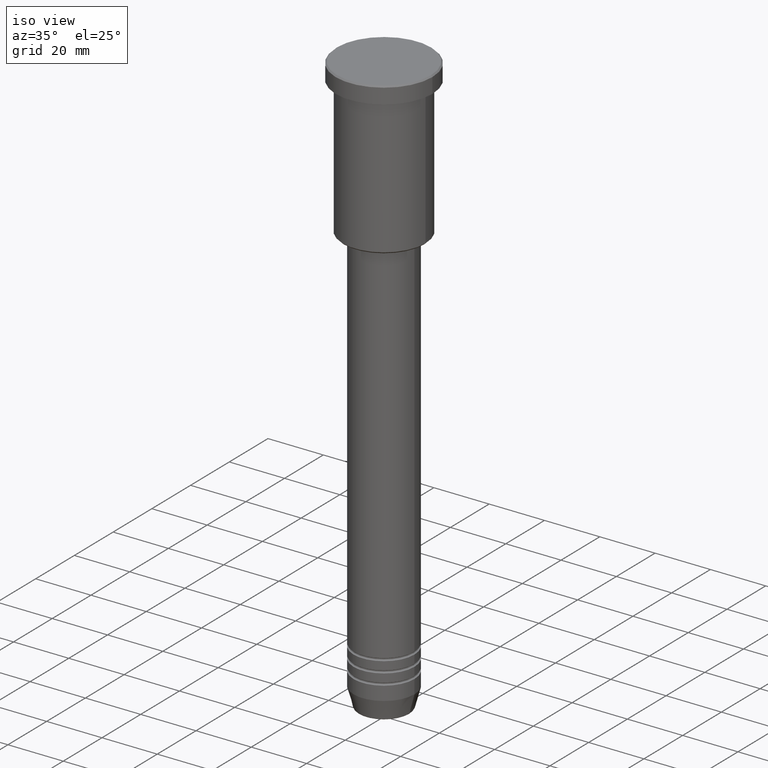
[diagram: clean part render]
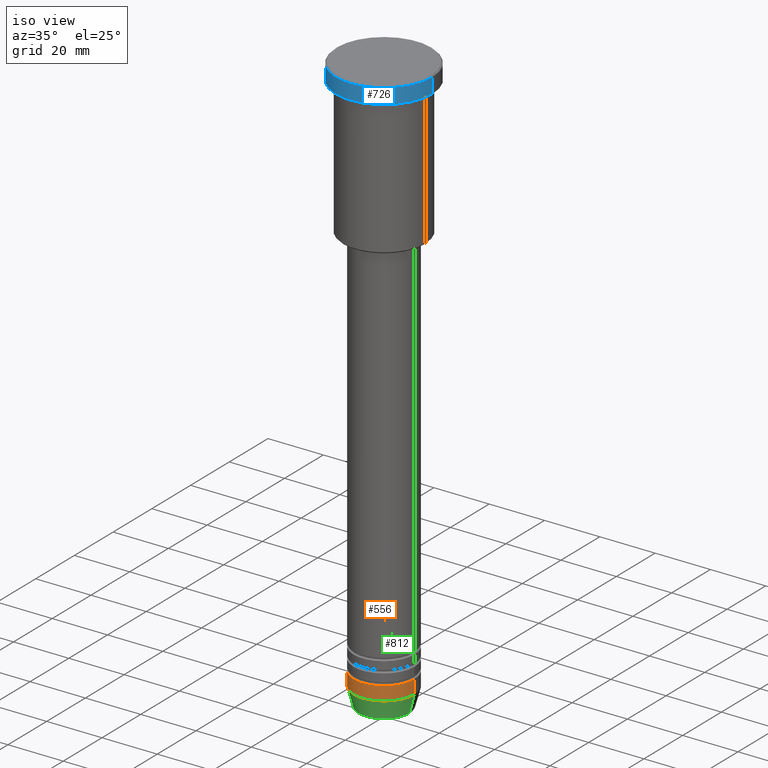
[diagram: same view with three faces highlighted in distinct colors, each labeled with its STEP entity id]
A machine part, iso view with three faces highlighted in distinct colors.
Their STEP definitions:

[orange] entity #556 — the highlighted cylindrical surface (partial cylindrical patch) has radius 11 mm, axis along (-0, -0, 1).
#52 = CARTESIAN_POINT ( 'NONE',  ( 11.00000000000000000, 0.000000000000000000, 0.000000000000000000 ) ) ;
#54 = ORIENTED_EDGE ( 'NONE', *, *, #300, .F. ) ;
#71 = DIRECTION ( 'NONE',  ( -0.000000000000000000, -0.000000000000000000, 1.000000000000000000 ) ) ;
#87 = FACE_OUTER_BOUND ( 'NONE', #144, .T. ) ;
#98 = DIRECTION ( 'NONE',  ( -0.000000000000000000, -0.000000000000000000, 1.000000000000000000 ) ) ;
#120 = DIRECTION ( 'NONE',  ( -0.000000000000000000, -0.000000000000000000, 1.000000000000000000 ) ) ;
#144 = EDGE_LOOP ( 'NONE', ( #704, #498, #499, #54 ) ) ;
#152 = CARTESIAN_POINT ( 'NONE',  ( -11.00000000000000000, 1.347111479062088405E-15, -204.0000000000000284 ) ) ;
#153 = EDGE_CURVE ( 'NONE', #201, #1177, #963, .T. ) ;
#184 = CARTESIAN_POINT ( 'NONE',  ( 11.00000000000000000, 0.000000000000000000, -199.0000000000000284 ) ) ;
#201 = VERTEX_POINT ( 'NONE', #906 ) ;
#220 = DIRECTION ( 'NONE',  ( -0.000000000000000000, -0.000000000000000000, 1.000000000000000000 ) ) ;
#261 = DIRECTION ( 'NONE',  ( 1.000000000000000000, 0.000000000000000000, 0.000000000000000000 ) ) ;
#270 = AXIS2_PLACEMENT_3D ( 'NONE', #1102, #98, #632 ) ;
#300 = EDGE_CURVE ( 'NONE', #868, #1177, #1107, .T. ) ;
#409 = CARTESIAN_POINT ( 'NONE',  ( -11.00000000000000000, 1.347111479062088405E-15, 0.000000000000000000 ) ) ;
#472 = DIRECTION ( 'NONE',  ( 1.000000000000000000, 0.000000000000000000, 0.000000000000000000 ) ) ;
#498 = ORIENTED_EDGE ( 'NONE', *, *, #521, .T. ) ;
#499 = ORIENTED_EDGE ( 'NONE', *, *, #153, .T. ) ;
#521 = EDGE_CURVE ( 'NONE', #890, #201, #841, .T. ) ;
#556 = ADVANCED_FACE ( 'NONE', ( #87 ), #923, .T. ) ;
#632 = DIRECTION ( 'NONE',  ( 1.000000000000000000, 0.000000000000000000, 0.000000000000000000 ) ) ;
#654 = AXIS2_PLACEMENT_3D ( 'NONE', #1087, #71, #261 ) ;
#695 = CARTESIAN_POINT ( 'NONE',  ( -11.00000000000000000, 1.347111479062088405E-15, -199.0000000000000284 ) ) ;
#704 = ORIENTED_EDGE ( 'NONE', *, *, #1118, .F. ) ;
#750 = DIRECTION ( 'NONE',  ( -0.000000000000000000, -0.000000000000000000, 1.000000000000000000 ) ) ;
#841 = CIRCLE ( 'NONE', #654, 11.00000000000000000 ) ;
#868 = VERTEX_POINT ( 'NONE', #695 ) ;
#890 = VERTEX_POINT ( 'NONE', #152 ) ;
#904 = VECTOR ( 'NONE', #220, 1000.000000000000000 ) ;
#906 = CARTESIAN_POINT ( 'NONE',  ( 11.00000000000000000, 0.000000000000000000, -204.0000000000000284 ) ) ;
#923 = CYLINDRICAL_SURFACE ( 'NONE', #270, 11.00000000000000000 ) ;
#934 = AXIS2_PLACEMENT_3D ( 'NONE', #1010, #120, #472 ) ;
#963 = LINE ( 'NONE', #52, #904 ) ;
#1010 = CARTESIAN_POINT ( 'NONE',  ( 0.000000000000000000, 0.000000000000000000, -199.0000000000000284 ) ) ;
#1040 = LINE ( 'NONE', #409, #1095 ) ;
#1087 = CARTESIAN_POINT ( 'NONE',  ( 0.000000000000000000, 0.000000000000000000, -204.0000000000000284 ) ) ;
#1095 = VECTOR ( 'NONE', #750, 1000.000000000000000 ) ;
#1102 = CARTESIAN_POINT ( 'NONE',  ( 0.000000000000000000, 0.000000000000000000, 0.000000000000000000 ) ) ;
#1107 = CIRCLE ( 'NONE', #934, 11.00000000000000000 ) ;
#1118 = EDGE_CURVE ( 'NONE', #890, #868, #1040, .T. ) ;
#1177 = VERTEX_POINT ( 'NONE', #184 ) ;

[blue] entity #726 — the highlighted cylindrical surface (partial cylindrical patch) has radius 17.5 mm, axis along (-0, -0, 1).
#1 = AXIS2_PLACEMENT_3D ( 'NONE', #970, #616, #702 ) ;
#13 = EDGE_CURVE ( 'NONE', #179, #1105, #598, .T. ) ;
#60 = AXIS2_PLACEMENT_3D ( 'NONE', #399, #673, #320 ) ;
#72 = EDGE_CURVE ( 'NONE', #80, #1105, #404, .T. ) ;
#80 = VERTEX_POINT ( 'NONE', #313 ) ;
#123 = DIRECTION ( 'NONE',  ( -0.000000000000000000, -0.000000000000000000, 1.000000000000000000 ) ) ;
#150 = FACE_OUTER_BOUND ( 'NONE', #618, .T. ) ;
#169 = DIRECTION ( 'NONE',  ( 1.000000000000000000, 0.000000000000000000, 0.000000000000000000 ) ) ;
#179 = VERTEX_POINT ( 'NONE', #530 ) ;
#187 = ORIENTED_EDGE ( 'NONE', *, *, #902, .T. ) ;
#313 = CARTESIAN_POINT ( 'NONE',  ( -17.50000000000000000, 2.143131898507868248E-15, -5.999999999999995559 ) ) ;
#320 = DIRECTION ( 'NONE',  ( 1.000000000000000000, 0.000000000000000000, 0.000000000000000000 ) ) ;
#321 = EDGE_CURVE ( 'NONE', #882, #179, #1108, .T. ) ;
#328 = CARTESIAN_POINT ( 'NONE',  ( -17.50000000000000000, 2.143131898507868248E-15, 0.000000000000000000 ) ) ;
#399 = CARTESIAN_POINT ( 'NONE',  ( 0.000000000000000000, 0.000000000000000000, -0.5000000000000559552 ) ) ;
#404 = LINE ( 'NONE', #328, #506 ) ;
#445 = CYLINDRICAL_SURFACE ( 'NONE', #1, 17.50000000000000000 ) ;
#466 = CIRCLE ( 'NONE', #623, 17.50000000000000000 ) ;
#506 = VECTOR ( 'NONE', #123, 1000.000000000000000 ) ;
#530 = CARTESIAN_POINT ( 'NONE',  ( 17.50000000000000000, 0.000000000000000000, -0.5000000000000559552 ) ) ;
#566 = CARTESIAN_POINT ( 'NONE',  ( 17.50000000000000000, 0.000000000000000000, 0.000000000000000000 ) ) ;
#598 = CIRCLE ( 'NONE', #60, 17.50000000000000000 ) ;
#616 = DIRECTION ( 'NONE',  ( -0.000000000000000000, -0.000000000000000000, 1.000000000000000000 ) ) ;
#618 = EDGE_LOOP ( 'NONE', ( #1066, #187, #1139, #818 ) ) ;
#620 = VECTOR ( 'NONE', #927, 1000.000000000000000 ) ;
#623 = AXIS2_PLACEMENT_3D ( 'NONE', #817, #721, #169 ) ;
#673 = DIRECTION ( 'NONE',  ( 0.000000000000000000, 0.000000000000000000, -1.000000000000000000 ) ) ;
#702 = DIRECTION ( 'NONE',  ( 1.000000000000000000, 0.000000000000000000, 0.000000000000000000 ) ) ;
#721 = DIRECTION ( 'NONE',  ( -0.000000000000000000, -0.000000000000000000, 1.000000000000000000 ) ) ;
#726 = ADVANCED_FACE ( 'NONE', ( #150 ), #445, .T. ) ;
#817 = CARTESIAN_POINT ( 'NONE',  ( 0.000000000000000000, 0.000000000000000000, -5.999999999999995559 ) ) ;
#818 = ORIENTED_EDGE ( 'NONE', *, *, #13, .T. ) ;
#882 = VERTEX_POINT ( 'NONE', #973 ) ;
#902 = EDGE_CURVE ( 'NONE', #80, #882, #466, .T. ) ;
#927 = DIRECTION ( 'NONE',  ( -0.000000000000000000, -0.000000000000000000, 1.000000000000000000 ) ) ;
#970 = CARTESIAN_POINT ( 'NONE',  ( 0.000000000000000000, 0.000000000000000000, 0.000000000000000000 ) ) ;
#973 = CARTESIAN_POINT ( 'NONE',  ( 17.50000000000000000, 0.000000000000000000, -5.999999999999995559 ) ) ;
#1066 = ORIENTED_EDGE ( 'NONE', *, *, #72, .F. ) ;
#1105 = VERTEX_POINT ( 'NONE', #1114 ) ;
#1108 = LINE ( 'NONE', #566, #620 ) ;
#1114 = CARTESIAN_POINT ( 'NONE',  ( -17.50000000000000000, 2.143131898507868248E-15, -0.5000000000000559552 ) ) ;
#1139 = ORIENTED_EDGE ( 'NONE', *, *, #321, .T. ) ;

[green] entity #812 — the highlighted conical surface has half-angle 15 deg.
#21 = AXIS2_PLACEMENT_3D ( 'NONE', #1153, #1068, #299 ) ;
#25 = ORIENTED_EDGE ( 'NONE', *, *, #521, .F. ) ;
#71 = DIRECTION ( 'NONE',  ( -0.000000000000000000, -0.000000000000000000, 1.000000000000000000 ) ) ;
#76 = VERTEX_POINT ( 'NONE', #1042 ) ;
#152 = CARTESIAN_POINT ( 'NONE',  ( -11.00000000000000000, 1.347111479062088405E-15, -204.0000000000000284 ) ) ;
#162 = ORIENTED_EDGE ( 'NONE', *, *, #831, .T. ) ;
#201 = VERTEX_POINT ( 'NONE', #906 ) ;
#261 = DIRECTION ( 'NONE',  ( 1.000000000000000000, 0.000000000000000000, 0.000000000000000000 ) ) ;
#288 = AXIS2_PLACEMENT_3D ( 'NONE', #871, #585, #879 ) ;
#293 = LINE ( 'NONE', #932, #735 ) ;
#299 = DIRECTION ( 'NONE',  ( 1.000000000000000000, 0.000000000000000000, 0.000000000000000000 ) ) ;
#431 = FACE_OUTER_BOUND ( 'NONE', #553, .T. ) ;
#434 = ORIENTED_EDGE ( 'NONE', *, *, #584, .F. ) ;
#450 = EDGE_CURVE ( 'NONE', #76, #803, #1077, .T. ) ;
#470 = DIRECTION ( 'NONE',  ( -0.2588190451025213501, 3.169619151431772337E-17, 0.9659258262890680902 ) ) ;
#521 = EDGE_CURVE ( 'NONE', #890, #201, #841, .T. ) ;
#553 = EDGE_LOOP ( 'NONE', ( #434, #644, #162, #25 ) ) ;
#584 = EDGE_CURVE ( 'NONE', #76, #890, #734, .T. ) ;
#585 = DIRECTION ( 'NONE',  ( -0.000000000000000000, -0.000000000000000000, 1.000000000000000000 ) ) ;
#644 = ORIENTED_EDGE ( 'NONE', *, *, #450, .T. ) ;
#654 = AXIS2_PLACEMENT_3D ( 'NONE', #1087, #71, #261 ) ;
#708 = CARTESIAN_POINT ( 'NONE',  ( 9.223655072137189492, 0.000000000000000000, -210.6294095225512706 ) ) ;
#734 = LINE ( 'NONE', #824, #1155 ) ;
#735 = VECTOR ( 'NONE', #848, 1000.000000000000000 ) ;
#803 = VERTEX_POINT ( 'NONE', #708 ) ;
#812 = ADVANCED_FACE ( 'NONE', ( #431 ), #866, .T. ) ;
#824 = CARTESIAN_POINT ( 'NONE',  ( -11.00000000000000000, 1.347111479062088405E-15, -204.0000000000000284 ) ) ;
#831 = EDGE_CURVE ( 'NONE', #803, #201, #293, .T. ) ;
#841 = CIRCLE ( 'NONE', #654, 11.00000000000000000 ) ;
#848 = DIRECTION ( 'NONE',  ( 0.2588190451025213501, 0.000000000000000000, 0.9659258262890680902 ) ) ;
#866 = CONICAL_SURFACE ( 'NONE', #21, 11.00000000000000000, 0.2617993877991500740 ) ;
#871 = CARTESIAN_POINT ( 'NONE',  ( 0.000000000000000000, 0.000000000000000000, -210.6294095225512706 ) ) ;
#879 = DIRECTION ( 'NONE',  ( 1.000000000000000000, 0.000000000000000000, 0.000000000000000000 ) ) ;
#890 = VERTEX_POINT ( 'NONE', #152 ) ;
#906 = CARTESIAN_POINT ( 'NONE',  ( 11.00000000000000000, 0.000000000000000000, -204.0000000000000284 ) ) ;
#932 = CARTESIAN_POINT ( 'NONE',  ( 11.00000000000000000, 0.000000000000000000, -204.0000000000000284 ) ) ;
#1042 = CARTESIAN_POINT ( 'NONE',  ( -9.223655072137189492, 1.238341722557647202E-15, -210.6294095225512706 ) ) ;
#1068 = DIRECTION ( 'NONE',  ( -0.000000000000000000, -0.000000000000000000, 1.000000000000000000 ) ) ;
#1077 = CIRCLE ( 'NONE', #288, 9.223655072137189492 ) ;
#1087 = CARTESIAN_POINT ( 'NONE',  ( 0.000000000000000000, 0.000000000000000000, -204.0000000000000284 ) ) ;
#1153 = CARTESIAN_POINT ( 'NONE',  ( 0.000000000000000000, 0.000000000000000000, -204.0000000000000284 ) ) ;
#1155 = VECTOR ( 'NONE', #470, 1000.000000000000000 ) ;